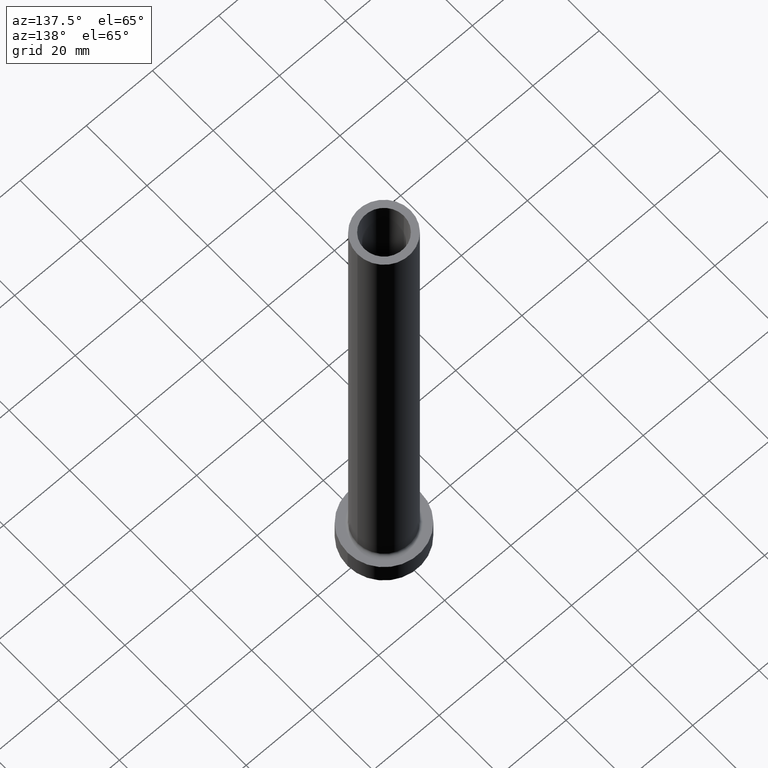
[diagram: clean part render]
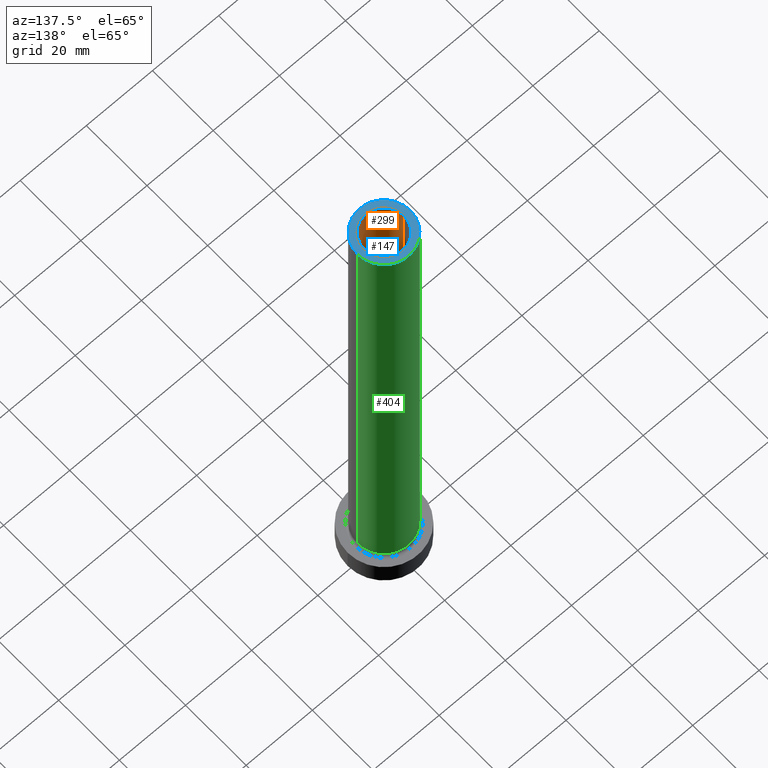
[diagram: same view with three faces highlighted in distinct colors, each labeled with its STEP entity id]
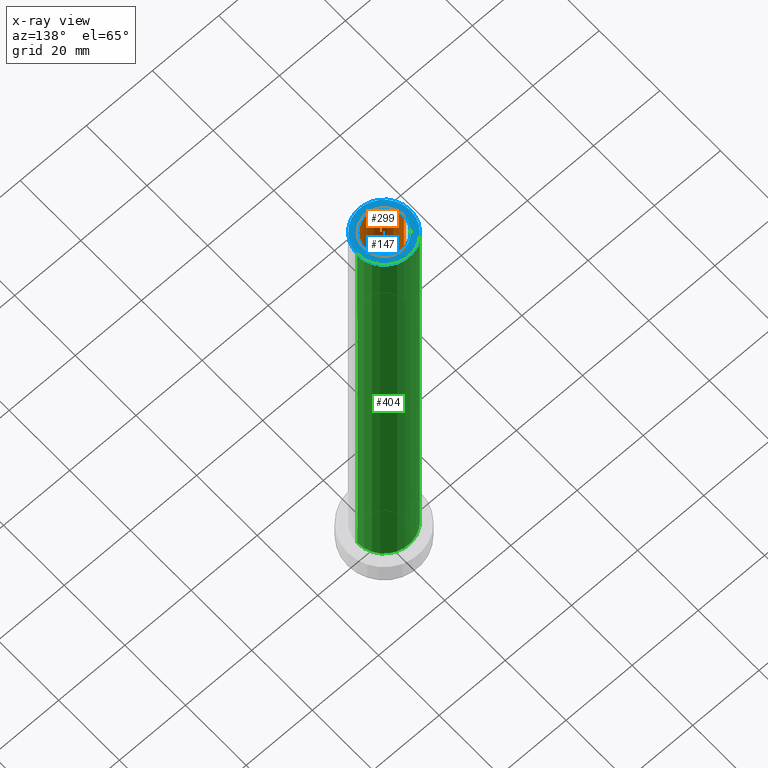
[diagram: x-ray of the same camera — body ghosted, the three highlighted faces saturated]
A machine part, auxiliary view with three faces highlighted in distinct colors.
The next image is the same camera in x-ray (body ghosted, the three faces saturated) — at least one of them is partly hidden behind the body in this view.
Their STEP definitions:

[orange] entity #299 — the highlighted cylindrical surface (edge-blend (fillet) strip) has radius 6 mm, axis along (0, 0, -1).
#25 = CARTESIAN_POINT ( 'NONE',  ( 6.000000000000000888, 7.347880794884119736E-16, 160.0000000000000000 ) ) ;
#43 = AXIS2_PLACEMENT_3D ( 'NONE', #453, #163, #263 ) ;
#59 = CARTESIAN_POINT ( 'NONE',  ( 6.000000000000000888, 7.347880794884119736E-16, 160.0000000000000000 ) ) ;
#64 = EDGE_LOOP ( 'NONE', ( #228, #70, #246, #83 ) ) ;
#66 = DIRECTION ( 'NONE',  ( -1.000000000000000000, 0.000000000000000000, 0.000000000000000000 ) ) ;
#70 = ORIENTED_EDGE ( 'NONE', *, *, #105, .T. ) ;
#72 = CYLINDRICAL_SURFACE ( 'NONE', #325, 6.000000000000000888 ) ;
#83 = ORIENTED_EDGE ( 'NONE', *, *, #303, .F. ) ;
#85 = DIRECTION ( 'NONE',  ( 0.000000000000000000, 0.000000000000000000, -1.000000000000000000 ) ) ;
#97 = CARTESIAN_POINT ( 'NONE',  ( 0.000000000000000000, 0.000000000000000000, 115.0000000000000000 ) ) ;
#105 = EDGE_CURVE ( 'NONE', #251, #261, #268, .T. ) ;
#110 = VERTEX_POINT ( 'NONE', #264 ) ;
#123 = EDGE_CURVE ( 'NONE', #146, #251, #387, .T. ) ;
#145 = DIRECTION ( 'NONE',  ( 1.000000000000000000, 0.000000000000000000, 0.000000000000000000 ) ) ;
#146 = VERTEX_POINT ( 'NONE', #342 ) ;
#163 = DIRECTION ( 'NONE',  ( 0.000000000000000000, 0.000000000000000000, 1.000000000000000000 ) ) ;
#166 = AXIS2_PLACEMENT_3D ( 'NONE', #97, #326, #145 ) ;
#202 = VECTOR ( 'NONE', #454, 1000.000000000000000 ) ;
#228 = ORIENTED_EDGE ( 'NONE', *, *, #123, .T. ) ;
#230 = VECTOR ( 'NONE', #85, 1000.000000000000000 ) ;
#245 = DIRECTION ( 'NONE',  ( 0.000000000000000000, 0.000000000000000000, -1.000000000000000000 ) ) ;
#246 = ORIENTED_EDGE ( 'NONE', *, *, #312, .F. ) ;
#251 = VERTEX_POINT ( 'NONE', #25 ) ;
#261 = VERTEX_POINT ( 'NONE', #316 ) ;
#263 = DIRECTION ( 'NONE',  ( 1.000000000000000000, 0.000000000000000000, 0.000000000000000000 ) ) ;
#264 = CARTESIAN_POINT ( 'NONE',  ( -6.000000000000000888, 0.000000000000000000, 115.0000000000000000 ) ) ;
#268 = LINE ( 'NONE', #59, #230 ) ;
#286 = CARTESIAN_POINT ( 'NONE',  ( 0.000000000000000000, 0.000000000000000000, 160.0000000000000000 ) ) ;
#299 = ADVANCED_FACE ( 'NONE', ( #425 ), #72, .F. ) ;
#303 = EDGE_CURVE ( 'NONE', #146, #110, #320, .T. ) ;
#312 = EDGE_CURVE ( 'NONE', #110, #261, #333, .T. ) ;
#316 = CARTESIAN_POINT ( 'NONE',  ( 6.000000000000000888, 7.347880794884119736E-16, 115.0000000000000000 ) ) ;
#320 = LINE ( 'NONE', #422, #202 ) ;
#325 = AXIS2_PLACEMENT_3D ( 'NONE', #286, #245, #66 ) ;
#326 = DIRECTION ( 'NONE',  ( 0.000000000000000000, 0.000000000000000000, 1.000000000000000000 ) ) ;
#333 = CIRCLE ( 'NONE', #166, 6.000000000000000888 ) ;
#342 = CARTESIAN_POINT ( 'NONE',  ( -6.000000000000000888, 0.000000000000000000, 160.0000000000000000 ) ) ;
#387 = CIRCLE ( 'NONE', #43, 6.000000000000000888 ) ;
#422 = CARTESIAN_POINT ( 'NONE',  ( -6.000000000000000888, 0.000000000000000000, 160.0000000000000000 ) ) ;
#425 = FACE_OUTER_BOUND ( 'NONE', #64, .T. ) ;
#453 = CARTESIAN_POINT ( 'NONE',  ( 0.000000000000000000, 0.000000000000000000, 160.0000000000000000 ) ) ;
#454 = DIRECTION ( 'NONE',  ( 0.000000000000000000, 0.000000000000000000, -1.000000000000000000 ) ) ;

[blue] entity #147 — the highlighted planar face has unit normal (0, 0, 1).
#9 = DIRECTION ( 'NONE',  ( 0.000000000000000000, 0.000000000000000000, 1.000000000000000000 ) ) ;
#25 = CARTESIAN_POINT ( 'NONE',  ( 6.000000000000000888, 7.347880794884119736E-16, 160.0000000000000000 ) ) ;
#32 = EDGE_LOOP ( 'NONE', ( #67, #424 ) ) ;
#43 = AXIS2_PLACEMENT_3D ( 'NONE', #453, #163, #263 ) ;
#49 = CARTESIAN_POINT ( 'NONE',  ( 0.000000000000000000, 0.000000000000000000, 160.0000000000000000 ) ) ;
#67 = ORIENTED_EDGE ( 'NONE', *, *, #416, .T. ) ;
#94 = PLANE ( 'NONE',  #236 ) ;
#104 = VERTEX_POINT ( 'NONE', #119 ) ;
#113 = CARTESIAN_POINT ( 'NONE',  ( 0.000000000000000000, 0.000000000000000000, 160.0000000000000000 ) ) ;
#119 = CARTESIAN_POINT ( 'NONE',  ( 8.000000000000000000, 9.797174393178825657E-16, 160.0000000000000000 ) ) ;
#123 = EDGE_CURVE ( 'NONE', #146, #251, #387, .T. ) ;
#124 = CIRCLE ( 'NONE', #390, 8.000000000000000000 ) ;
#131 = CIRCLE ( 'NONE', #297, 6.000000000000000888 ) ;
#146 = VERTEX_POINT ( 'NONE', #342 ) ;
#147 = ADVANCED_FACE ( 'NONE', ( #415, #204 ), #94, .T. ) ;
#163 = DIRECTION ( 'NONE',  ( 0.000000000000000000, 0.000000000000000000, 1.000000000000000000 ) ) ;
#173 = CIRCLE ( 'NONE', #434, 8.000000000000000000 ) ;
#186 = EDGE_LOOP ( 'NONE', ( #339, #452 ) ) ;
#204 = FACE_OUTER_BOUND ( 'NONE', #32, .T. ) ;
#206 = VERTEX_POINT ( 'NONE', #345 ) ;
#232 = CARTESIAN_POINT ( 'NONE',  ( 0.000000000000000000, 0.000000000000000000, 160.0000000000000000 ) ) ;
#236 = AXIS2_PLACEMENT_3D ( 'NONE', #232, #300, #412 ) ;
#251 = VERTEX_POINT ( 'NONE', #25 ) ;
#257 = DIRECTION ( 'NONE',  ( 1.000000000000000000, 0.000000000000000000, 0.000000000000000000 ) ) ;
#263 = DIRECTION ( 'NONE',  ( 1.000000000000000000, 0.000000000000000000, 0.000000000000000000 ) ) ;
#294 = CARTESIAN_POINT ( 'NONE',  ( 0.000000000000000000, 0.000000000000000000, 160.0000000000000000 ) ) ;
#297 = AXIS2_PLACEMENT_3D ( 'NONE', #113, #361, #257 ) ;
#300 = DIRECTION ( 'NONE',  ( 0.000000000000000000, 0.000000000000000000, 1.000000000000000000 ) ) ;
#330 = DIRECTION ( 'NONE',  ( 0.000000000000000000, 0.000000000000000000, 1.000000000000000000 ) ) ;
#337 = DIRECTION ( 'NONE',  ( 1.000000000000000000, 0.000000000000000000, 0.000000000000000000 ) ) ;
#339 = ORIENTED_EDGE ( 'NONE', *, *, #123, .F. ) ;
#342 = CARTESIAN_POINT ( 'NONE',  ( -6.000000000000000888, 0.000000000000000000, 160.0000000000000000 ) ) ;
#345 = CARTESIAN_POINT ( 'NONE',  ( -8.000000000000000000, 0.000000000000000000, 160.0000000000000000 ) ) ;
#361 = DIRECTION ( 'NONE',  ( 0.000000000000000000, 0.000000000000000000, 1.000000000000000000 ) ) ;
#370 = DIRECTION ( 'NONE',  ( 1.000000000000000000, 0.000000000000000000, 0.000000000000000000 ) ) ;
#384 = EDGE_CURVE ( 'NONE', #251, #146, #131, .T. ) ;
#387 = CIRCLE ( 'NONE', #43, 6.000000000000000888 ) ;
#390 = AXIS2_PLACEMENT_3D ( 'NONE', #49, #9, #337 ) ;
#412 = DIRECTION ( 'NONE',  ( 1.000000000000000000, 0.000000000000000000, -0.000000000000000000 ) ) ;
#415 = FACE_BOUND ( 'NONE', #186, .T. ) ;
#416 = EDGE_CURVE ( 'NONE', #206, #104, #173, .T. ) ;
#424 = ORIENTED_EDGE ( 'NONE', *, *, #456, .T. ) ;
#434 = AXIS2_PLACEMENT_3D ( 'NONE', #294, #330, #370 ) ;
#452 = ORIENTED_EDGE ( 'NONE', *, *, #384, .F. ) ;
#453 = CARTESIAN_POINT ( 'NONE',  ( 0.000000000000000000, 0.000000000000000000, 160.0000000000000000 ) ) ;
#456 = EDGE_CURVE ( 'NONE', #104, #206, #124, .T. ) ;

[green] entity #404 — the highlighted cylindrical surface (edge-blend (fillet) strip) has radius 8 mm, axis along (-0, -0, -1).
#4 = EDGE_CURVE ( 'NONE', #206, #430, #296, .T. ) ;
#6 = ORIENTED_EDGE ( 'NONE', *, *, #4, .F. ) ;
#9 = DIRECTION ( 'NONE',  ( 0.000000000000000000, 0.000000000000000000, 1.000000000000000000 ) ) ;
#15 = ORIENTED_EDGE ( 'NONE', *, *, #456, .F. ) ;
#44 = EDGE_CURVE ( 'NONE', #104, #138, #116, .T. ) ;
#49 = CARTESIAN_POINT ( 'NONE',  ( 0.000000000000000000, 0.000000000000000000, 160.0000000000000000 ) ) ;
#58 = CARTESIAN_POINT ( 'NONE',  ( 8.000000000000000000, 9.797174393178825657E-16, 7.700000000000012612 ) ) ;
#93 = EDGE_CURVE ( 'NONE', #138, #430, #137, .T. ) ;
#104 = VERTEX_POINT ( 'NONE', #119 ) ;
#111 = CARTESIAN_POINT ( 'NONE',  ( 0.000000000000000000, 0.000000000000000000, 160.0000000000000000 ) ) ;
#116 = LINE ( 'NONE', #189, #158 ) ;
#119 = CARTESIAN_POINT ( 'NONE',  ( 8.000000000000000000, 9.797174393178825657E-16, 160.0000000000000000 ) ) ;
#124 = CIRCLE ( 'NONE', #390, 8.000000000000000000 ) ;
#135 = ORIENTED_EDGE ( 'NONE', *, *, #93, .T. ) ;
#137 = CIRCLE ( 'NONE', #403, 8.000000000000000000 ) ;
#138 = VERTEX_POINT ( 'NONE', #58 ) ;
#152 = DIRECTION ( 'NONE',  ( -0.000000000000000000, -0.000000000000000000, -1.000000000000000000 ) ) ;
#158 = VECTOR ( 'NONE', #334, 1000.000000000000000 ) ;
#187 = DIRECTION ( 'NONE',  ( -0.000000000000000000, -0.000000000000000000, -1.000000000000000000 ) ) ;
#189 = CARTESIAN_POINT ( 'NONE',  ( 8.000000000000000000, 9.797174393178825657E-16, 160.0000000000000000 ) ) ;
#192 = CARTESIAN_POINT ( 'NONE',  ( 0.000000000000000000, 0.000000000000000000, 7.700000000000012612 ) ) ;
#206 = VERTEX_POINT ( 'NONE', #345 ) ;
#216 = FACE_OUTER_BOUND ( 'NONE', #346, .T. ) ;
#225 = AXIS2_PLACEMENT_3D ( 'NONE', #111, #187, #335 ) ;
#296 = LINE ( 'NONE', #436, #395 ) ;
#332 = CYLINDRICAL_SURFACE ( 'NONE', #225, 8.000000000000000000 ) ;
#334 = DIRECTION ( 'NONE',  ( -0.000000000000000000, -0.000000000000000000, -1.000000000000000000 ) ) ;
#335 = DIRECTION ( 'NONE',  ( -1.000000000000000000, 0.000000000000000000, 0.000000000000000000 ) ) ;
#336 = DIRECTION ( 'NONE',  ( 0.000000000000000000, 0.000000000000000000, 1.000000000000000000 ) ) ;
#337 = DIRECTION ( 'NONE',  ( 1.000000000000000000, 0.000000000000000000, 0.000000000000000000 ) ) ;
#345 = CARTESIAN_POINT ( 'NONE',  ( -8.000000000000000000, 0.000000000000000000, 160.0000000000000000 ) ) ;
#346 = EDGE_LOOP ( 'NONE', ( #15, #419, #135, #6 ) ) ;
#363 = CARTESIAN_POINT ( 'NONE',  ( -8.000000000000000000, 0.000000000000000000, 7.700000000000012612 ) ) ;
#390 = AXIS2_PLACEMENT_3D ( 'NONE', #49, #9, #337 ) ;
#395 = VECTOR ( 'NONE', #152, 1000.000000000000000 ) ;
#403 = AXIS2_PLACEMENT_3D ( 'NONE', #192, #336, #439 ) ;
#404 = ADVANCED_FACE ( 'NONE', ( #216 ), #332, .T. ) ;
#419 = ORIENTED_EDGE ( 'NONE', *, *, #44, .T. ) ;
#430 = VERTEX_POINT ( 'NONE', #363 ) ;
#436 = CARTESIAN_POINT ( 'NONE',  ( -8.000000000000000000, 0.000000000000000000, 160.0000000000000000 ) ) ;
#439 = DIRECTION ( 'NONE',  ( 1.000000000000000000, 0.000000000000000000, 0.000000000000000000 ) ) ;
#456 = EDGE_CURVE ( 'NONE', #104, #206, #124, .T. ) ;